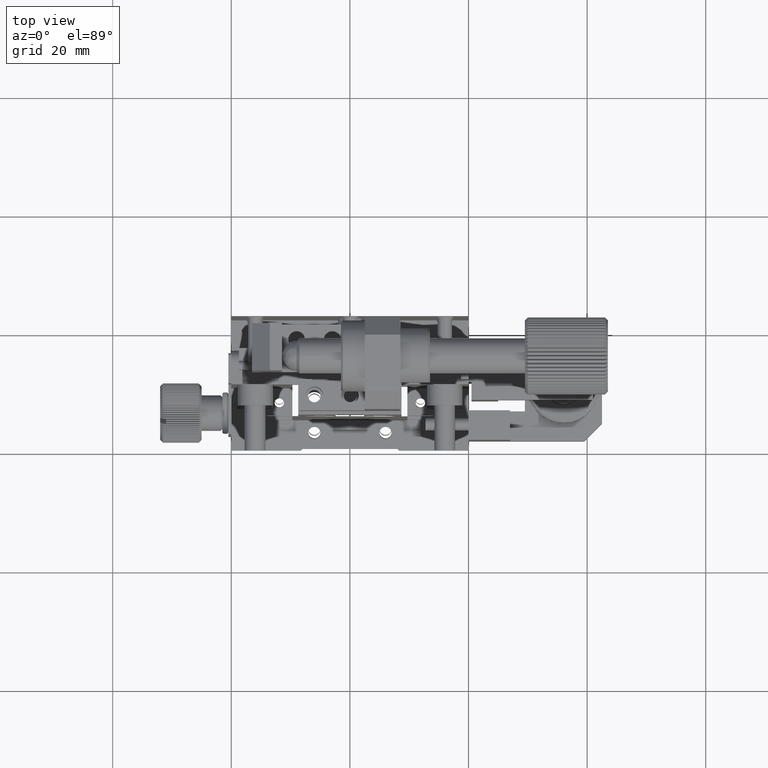
[diagram: clean part render]
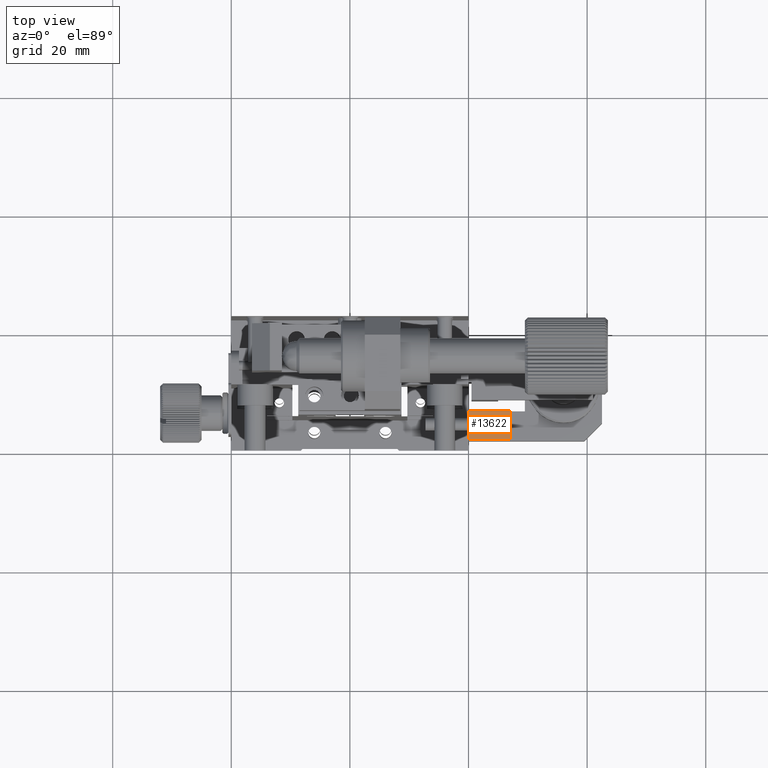
[diagram: same view with one face highlighted and labeled with its STEP entity id]
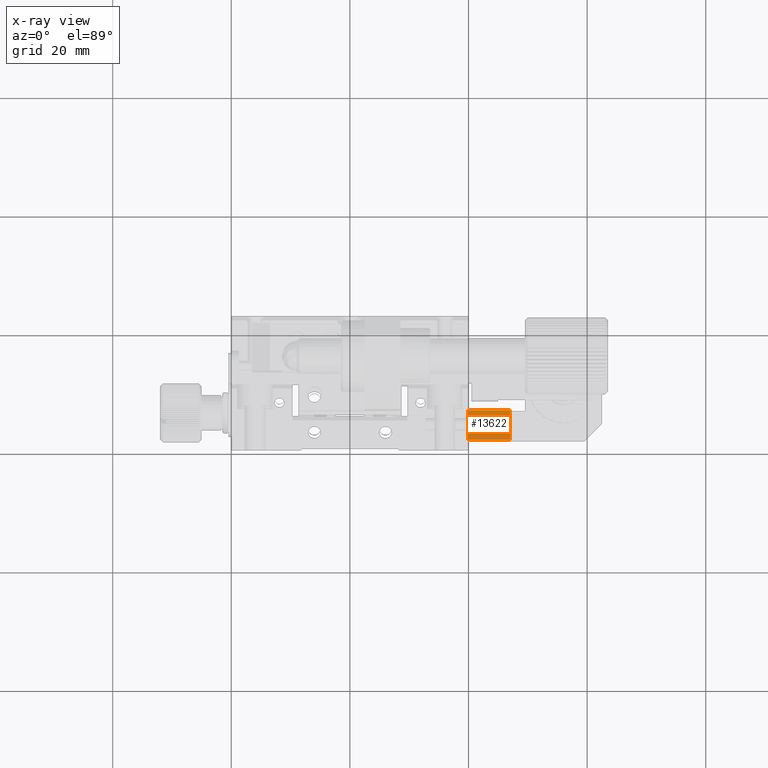
[diagram: x-ray of the same camera — body ghosted, the highlighted face saturated]
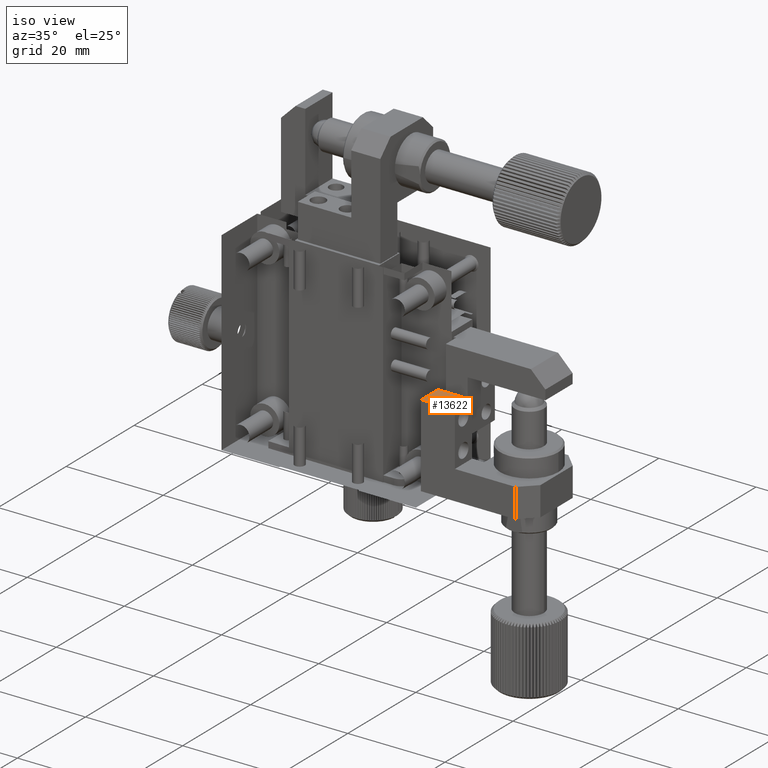
[diagram: same view with one face highlighted and labeled with its STEP entity id]
A machine part, top view. The second image highlights one B-rep face of the part: STEP entity #13622.
The next image is the same camera in x-ray: the body ghosted, the highlighted face saturated — about 0% of this face is hidden behind the body in this view.
A second angle (iso view) of the same face is appended — the face is thin or edge-on in the first view.
In plain terms, the highlighted planar face has unit normal (-0, 0, -1).
Its self-contained STEP definition (entity closure, byte-faithful):
#985 = VERTEX_POINT ( 'NONE', #10429 ) ;
#1433 = ORIENTED_EDGE ( 'NONE', *, *, #33286, .F. ) ;
#2032 = DIRECTION ( 'NONE',  ( 1.544261932362337833E-32, 1.000000000000000000, 2.775557561562891967E-17 ) ) ;
#6310 = CARTESIAN_POINT ( 'NONE',  ( 40.00000000005445600, 1.500000000000000444, -20.49999999999999645 ) ) ;
#6535 = DIRECTION ( 'NONE',  ( -1.000000000000000000, 0.000000000000000000, 5.563789970519572424E-16 ) ) ;
#6912 = CARTESIAN_POINT ( 'NONE',  ( 40.00000000005445600, 1.500000000000000444, -20.49999999999999645 ) ) ;
#8924 = VERTEX_POINT ( 'NONE', #15283 ) ;
#9373 = CARTESIAN_POINT ( 'NONE',  ( 40.00000000005445600, 6.500000000000000888, -20.49999999999999645 ) ) ;
#10429 = CARTESIAN_POINT ( 'NONE',  ( 47.00000000005445600, 1.500000000000000444, -20.50000000000000000 ) ) ;
#11767 = EDGE_CURVE ( 'NONE', #8924, #39635, #34779, .T. ) ;
#13300 = VECTOR ( 'NONE', #15806, 1000.000000000000000 ) ;
#13387 = VECTOR ( 'NONE', #43390, 1000.000000000000000 ) ;
#13418 = VECTOR ( 'NONE', #26842, 1000.000000000000000 ) ;
#13494 = CARTESIAN_POINT ( 'NONE',  ( 40.00000000005445600, 6.500000000000000888, -20.49999999999999645 ) ) ;
#13622 = ADVANCED_FACE ( 'NONE', ( #32154 ), #46685, .F. ) ;
#14216 = LINE ( 'NONE', #21393, #13300 ) ;
#14556 = ORIENTED_EDGE ( 'NONE', *, *, #36078, .F. ) ;
#15126 = VECTOR ( 'NONE', #2032, 1000.000000000000000 ) ;
#15283 = CARTESIAN_POINT ( 'NONE',  ( 40.00000000005445600, 1.500000000000000444, -20.49999999999999645 ) ) ;
#15806 = DIRECTION ( 'NONE',  ( -1.544261932362337833E-32, -1.000000000000000000, -2.775557561562891967E-17 ) ) ;
#16785 = AXIS2_PLACEMENT_3D ( 'NONE', #6310, #24963, #6535 ) ;
#18631 = EDGE_CURVE ( 'NONE', #39635, #46143, #37610, .T. ) ;
#19877 = ORIENTED_EDGE ( 'NONE', *, *, #18631, .F. ) ;
#20608 = CARTESIAN_POINT ( 'NONE',  ( 47.00000000005445600, 6.500000000000000888, -20.50000000000000000 ) ) ;
#21393 = CARTESIAN_POINT ( 'NONE',  ( 47.00000000005445600, 1.500000000000000444, -20.50000000000000000 ) ) ;
#24963 = DIRECTION ( 'NONE',  ( -5.563789970519572424E-16, 2.775557561562891967E-17, -1.000000000000000000 ) ) ;
#26842 = DIRECTION ( 'NONE',  ( 1.000000000000000000, -0.000000000000000000, -5.563789970519572424E-16 ) ) ;
#28847 = CARTESIAN_POINT ( 'NONE',  ( 40.00000000005444889, 1.500000000000000444, -20.50000000000000000 ) ) ;
#28938 = ORIENTED_EDGE ( 'NONE', *, *, #11767, .F. ) ;
#32154 = FACE_OUTER_BOUND ( 'NONE', #38353, .T. ) ;
#33286 = EDGE_CURVE ( 'NONE', #46143, #985, #14216, .T. ) ;
#34779 = LINE ( 'NONE', #6912, #15126 ) ;
#36078 = EDGE_CURVE ( 'NONE', #985, #8924, #39817, .T. ) ;
#37610 = LINE ( 'NONE', #9373, #13418 ) ;
#38353 = EDGE_LOOP ( 'NONE', ( #14556, #1433, #19877, #28938 ) ) ;
#39635 = VERTEX_POINT ( 'NONE', #13494 ) ;
#39817 = LINE ( 'NONE', #28847, #13387 ) ;
#43390 = DIRECTION ( 'NONE',  ( -1.000000000000000000, 2.220605722151506213E-17, 6.163419003367436300E-34 ) ) ;
#46143 = VERTEX_POINT ( 'NONE', #20608 ) ;
#46685 = PLANE ( 'NONE',  #16785 ) ;